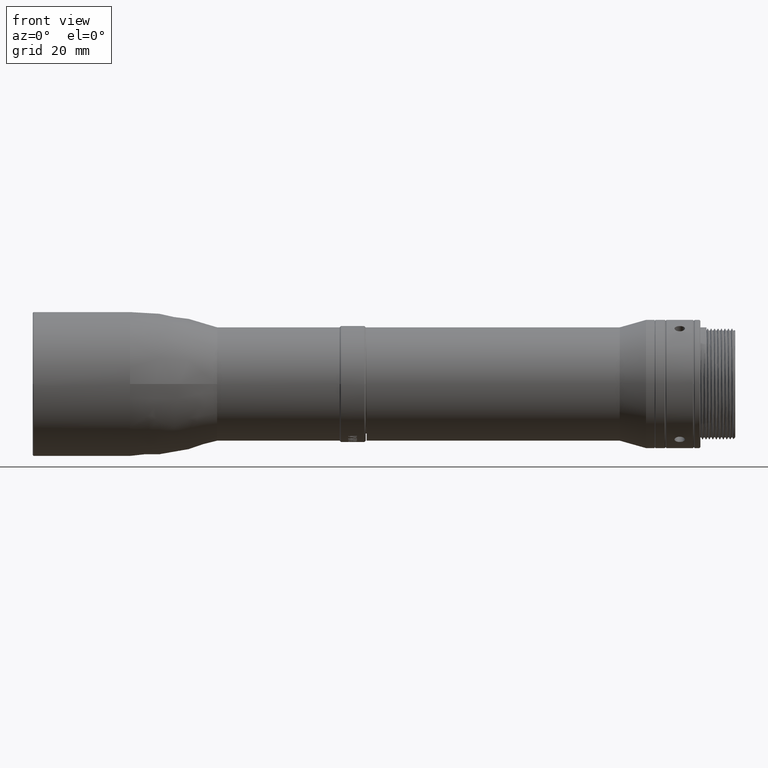
[diagram: clean part render]
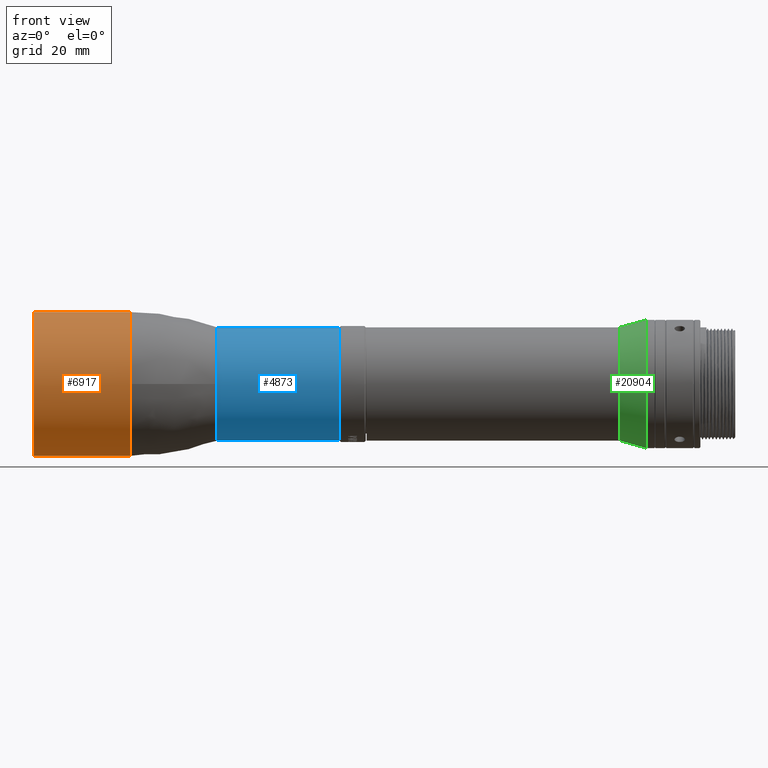
[diagram: same view with three faces highlighted in distinct colors, each labeled with its STEP entity id]
A machine part, front view with three faces highlighted in distinct colors.
Their STEP definitions:

[orange] entity #6917 — the highlighted face is a freeform B-spline surface patch.
#797 = VERTEX_POINT ( 'NONE', #2583 ) ;
#919 = CARTESIAN_POINT ( 'NONE',  ( -20.00000000000000000, -3.178822486404952411E-09, -16.50000000001667644 ) ) ;
#1673 = CARTESIAN_POINT ( 'NONE',  ( -42.11000000000000654, -16.49999999999999645, -5.019639770831055392E-09 ) ) ;
#2487 = CARTESIAN_POINT ( 'NONE',  ( -20.00000000000000000, -16.49999999974913223, -3.709077887212430661E-05 ) ) ;
#2583 = CARTESIAN_POINT ( 'NONE',  ( -42.10999999999999943, -6.486395782474088192E-09, 16.50000000000000000 ) ) ;
#2952 = CARTESIAN_POINT ( 'NONE',  ( -20.00000000000000000, -4.041334438045979436E-15, -16.50000000000000000 ) ) ;
#3078 = DIRECTION ( 'NONE',  ( -1.000000000000000000, -0.000000000000000000, -0.000000000000000000 ) ) ;
#3324 =( BOUNDED_CURVE ( )  B_SPLINE_CURVE ( 3, ( #16725, #16996, #20907, #18679 ),
 .UNSPECIFIED., .F., .T. ) 
 B_SPLINE_CURVE_WITH_KNOTS ( ( 4, 4 ),
 ( 0.000000000000000000, 1.000000000000000000 ),
 .UNSPECIFIED. ) 
 CURVE ( )  GEOMETRIC_REPRESENTATION_ITEM ( )  RATIONAL_B_SPLINE_CURVE ( ( 0.5000000001031833508, 0.4999996254826141739, 0.6666662921148863719, 1.000000000000000000 ) ) 
 REPRESENTATION_ITEM ( '' )  );
#3679 = CARTESIAN_POINT ( 'NONE',  ( -42.11000000000001364, -15.97227470411579198, 4.278162377373036840 ) ) ;
#4046 = CARTESIAN_POINT ( 'NONE',  ( -42.11000000000000654, -16.50000000015684876, 1.079922472092851748 ) ) ;
#4757 = CARTESIAN_POINT ( 'NONE',  ( -20.00000000000000355, -32.99999999323157596, 16.49999998646317323 ) ) ;
#4889 = CARTESIAN_POINT ( 'NONE',  ( -20.00000000000000355, -32.99999998646318033, -16.49999999999999289 ) ) ;
#5739 = CARTESIAN_POINT ( 'NONE',  ( -42.11000000000001364, -5.316558368529911149, 15.65728072383330449 ) ) ;
#6576 = FACE_OUTER_BOUND ( 'NONE', #22468, .T. ) ;
#6708 = ORIENTED_EDGE ( 'NONE', *, *, #23654, .T. ) ;
#6917 = ADVANCED_FACE ( 'NONE', ( #6576 ), #20268, .F. ) ;
#6991 = CARTESIAN_POINT ( 'NONE',  ( -31.05499999999999972, 0.000000000000000000, -16.50000000000000000 ) ) ;
#7107 = CARTESIAN_POINT ( 'NONE',  ( -20.00000000000000000, -6.768413141005929510E-09, 16.50000000000000000 ) ) ;
#7580 = CARTESIAN_POINT ( 'NONE',  ( -42.11000000000001364, -8.268986128094045540, 14.31922138121677257 ) ) ;
#7937 = CARTESIAN_POINT ( 'NONE',  ( -42.11000000000002075, -10.90364138816323170, 12.43088239141700235 ) ) ;
#8068 = CARTESIAN_POINT ( 'NONE',  ( -42.10999999999999943, -14.31922138580975279, 8.268986120140468188 ) ) ;
#9050 = CARTESIAN_POINT ( 'NONE',  ( -31.05499999999999972, -6.768413141005929510E-09, 16.50000000000000000 ) ) ;
#9057 = B_SPLINE_CURVE_WITH_KNOTS ( 'NONE', 3,
 ( #19685, #4046, #11860, #3679, #17986, #15908, #8068, #13952, #22026, #7937, #23863, #7580, #23601, #5739, #10032, #12117, #11614, #9777 ),
 .UNSPECIFIED., .F., .F.,
 ( 4, 2, 2, 2, 2, 2, 2, 2, 4 ),
 ( 0.000000000000000000, 0.1250000000000000555, 0.2500000000000001110, 0.3750000000000000555, 0.5000000000000000000, 0.6249999999999998890, 0.7499999999999998890, 0.8749999999999998890, 1.000000000000000000 ),
 .UNSPECIFIED. ) ;
#9777 = CARTESIAN_POINT ( 'NONE',  ( -42.10999999999999943, -6.486395782474088192E-09, 16.50000000000000000 ) ) ;
#10032 = CARTESIAN_POINT ( 'NONE',  ( -42.11000000000001364, -4.278162386244799720, 15.97227470173949371 ) ) ;
#10188 = ORIENTED_EDGE ( 'NONE', *, *, #12881, .T. ) ;
#10279 = VERTEX_POINT ( 'NONE', #25705 ) ;
#10752 = CARTESIAN_POINT ( 'NONE',  ( -42.10999999999999943, -6.768413141005929510E-09, 16.50000000000000000 ) ) ;
#11029 = CARTESIAN_POINT ( 'NONE',  ( -42.11000000000000654, -32.99999999323157596, 16.49999998646317323 ) ) ;
#11033 = ORIENTED_EDGE ( 'NONE', *, *, #16175, .F. ) ;
#11460 = VERTEX_POINT ( 'NONE', #20785 ) ;
#11614 = CARTESIAN_POINT ( 'NONE',  ( -42.11000000000000654, -1.079922481257737488, 16.49999999955700858 ) ) ;
#11700 = EDGE_CURVE ( 'NONE', #15762, #12187, #21936, .T. ) ;
#11860 = CARTESIAN_POINT ( 'NONE',  ( -42.11000000000000654, -16.39363955033910969, 2.159818243386351089 ) ) ;
#12117 = CARTESIAN_POINT ( 'NONE',  ( -42.10999999999999233, -2.159818252492157420, 16.39363954913944355 ) ) ;
#12141 = CARTESIAN_POINT ( 'NONE',  ( -42.10999999999999943, -7.758803709337645993E-10, -16.50000000000000000 ) ) ;
#12187 = VERTEX_POINT ( 'NONE', #1673 ) ;
#12274 = CARTESIAN_POINT ( 'NONE',  ( -42.10999999999999943, -10.99999999724308886, -16.49999999793099192 ) ) ;
#12642 = ORIENTED_EDGE ( 'NONE', *, *, #11700, .F. ) ;
#12881 = EDGE_CURVE ( 'NONE', #10279, #11460, #24459, .T. ) ;
#12969 = CARTESIAN_POINT ( 'NONE',  ( -42.11000000000000654, -32.99999998646318033, -16.49999999999999289 ) ) ;
#13249 = LINE ( 'NONE', #6991, #13390 ) ;
#13390 = VECTOR ( 'NONE', #18984, 1000.000000000000000 ) ;
#13731 = ORIENTED_EDGE ( 'NONE', *, *, #20353, .T. ) ;
#13952 = CARTESIAN_POINT ( 'NONE',  ( -42.11000000000000654, -13.11927582465873776, 10.06483156279487190 ) ) ;
#14768 = EDGE_CURVE ( 'NONE', #21166, #797, #15050, .T. ) ;
#14865 = CARTESIAN_POINT ( 'NONE',  ( -19.99999999999999645, -16.49997527281871967, -11.00001648439760160 ) ) ;
#15050 = LINE ( 'NONE', #9050, #17242 ) ;
#15337 = CARTESIAN_POINT ( 'NONE',  ( -20.00000000000000355, -5.866025812294397193E-09, 16.50000000000000000 ) ) ;
#15762 = VERTEX_POINT ( 'NONE', #23263 ) ;
#15908 = CARTESIAN_POINT ( 'NONE',  ( -42.10999999999999943, -14.83074384875681950, 7.311994901767167931 ) ) ;
#16175 = EDGE_CURVE ( 'NONE', #12187, #797, #9057, .T. ) ;
#16725 = CARTESIAN_POINT ( 'NONE',  ( -20.00000000000000000, -16.49999999974913223, -3.709077887212430661E-05 ) ) ;
#16752 = CARTESIAN_POINT ( 'NONE',  ( -42.10999999999999943, -4.041334438045979436E-15, -16.50000000000000000 ) ) ;
#16996 = CARTESIAN_POINT ( 'NONE',  ( -20.00000000000000000, -16.50002472719053515, 10.99998351105614525 ) ) ;
#17242 = VECTOR ( 'NONE', #3078, 1000.000000000000000 ) ;
#17986 = CARTESIAN_POINT ( 'NONE',  ( -42.11000000000000654, -15.65728072678636984, 5.316558359833104319 ) ) ;
#18500 = ORIENTED_EDGE ( 'NONE', *, *, #14768, .T. ) ;
#18679 = CARTESIAN_POINT ( 'NONE',  ( -20.00000000000000355, -5.866025812294397193E-09, 16.50000000000000000 ) ) ;
#18984 = DIRECTION ( 'NONE',  ( 1.000000000000000000, 0.000000000000000000, 0.000000000000000000 ) ) ;
#19685 = CARTESIAN_POINT ( 'NONE',  ( -42.11000000000000654, -16.49999999999999645, -5.019639770831055392E-09 ) ) ;
#20268 =( BOUNDED_SURFACE ( )  B_SPLINE_SURFACE ( 1, 3, ( 
 ( #10752, #11029, #12969, #16752 ),
 ( #7107, #4757, #4889, #2952 ) ),
 .UNSPECIFIED., .F., .F., .F. ) 
 B_SPLINE_SURFACE_WITH_KNOTS ( ( 2, 2 ),
 ( 4, 4 ),
 ( 0.000000000000000000, 1.000000000000000000 ),
 ( 0.000000000000000000, 1.000000000000000000 ),
 .UNSPECIFIED. ) 
 GEOMETRIC_REPRESENTATION_ITEM ( )  RATIONAL_B_SPLINE_SURFACE ( (
 ( 1.000000000000000000, 0.3333333334700690487, 0.3333333334700690487, 1.000000000000000000),
 ( 1.000000000000000000, 0.3333333334700690487, 0.3333333334700690487, 1.000000000000000000) ) ) 
 REPRESENTATION_ITEM ( '' )  SURFACE ( )  );
#20353 = EDGE_CURVE ( 'NONE', #11460, #21166, #3324, .T. ) ;
#20785 = CARTESIAN_POINT ( 'NONE',  ( -20.00000000000000000, -16.49999999974913223, -3.709077887212430661E-05 ) ) ;
#20907 = CARTESIAN_POINT ( 'NONE',  ( -20.00000000000000000, -8.250013913703176271, 16.49999999661578798 ) ) ;
#21166 = VERTEX_POINT ( 'NONE', #15337 ) ;
#21797 = CARTESIAN_POINT ( 'NONE',  ( -42.10999999999999943, -16.49999999661579508, -8.250000003489466494 ) ) ;
#21936 =( BOUNDED_CURVE ( )  B_SPLINE_CURVE ( 3, ( #12141, #12274, #21797, #22838 ),
 .UNSPECIFIED., .F., .T. ) 
 B_SPLINE_CURVE_WITH_KNOTS ( ( 4, 4 ),
 ( 0.000000000000000000, 1.000000000000000000 ),
 .UNSPECIFIED. ) 
 CURVE ( )  GEOMETRIC_REPRESENTATION_ITEM ( )  RATIONAL_B_SPLINE_CURVE ( ( 0.5000000001025517449, 0.5000000001680843242, 0.6666666668005670759, 1.000000000000000000 ) ) 
 REPRESENTATION_ITEM ( '' )  );
#22026 = CARTESIAN_POINT ( 'NONE',  ( -42.11000000000000654, -12.43088239747339685, 10.90364138125852733 ) ) ;
#22468 = EDGE_LOOP ( 'NONE', ( #12642, #6708, #10188, #13731, #18500, #11033 ) ) ;
#22838 = CARTESIAN_POINT ( 'NONE',  ( -42.11000000000000654, -16.49999999999999645, -5.019639770831055392E-09 ) ) ;
#23263 = CARTESIAN_POINT ( 'NONE',  ( -42.10999999999999943, -7.758803709337645993E-10, -16.50000000000000000 ) ) ;
#23601 = CARTESIAN_POINT ( 'NONE',  ( -42.11000000000001364, -7.311994910004875337, 14.83074384469538742 ) ) ;
#23654 = EDGE_CURVE ( 'NONE', #15762, #10279, #13249, .T. ) ;
#23863 = CARTESIAN_POINT ( 'NONE',  ( -42.11000000000001364, -10.06483157008194063, 13.11927581906826035 ) ) ;
#24459 =( BOUNDED_CURVE ( )  B_SPLINE_CURVE ( 3, ( #919, #24643, #14865, #2487 ),
 .UNSPECIFIED., .F., .T. ) 
 B_SPLINE_CURVE_WITH_KNOTS ( ( 4, 4 ),
 ( 0.000000000000000000, 1.000000000000000000 ),
 .UNSPECIFIED. ) 
 CURVE ( )  GEOMETRIC_REPRESENTATION_ITEM ( )  RATIONAL_B_SPLINE_CURVE ( ( 1.000000000000000000, 0.6666670413551827323, 0.5000003747229104789, 0.5000000001031833508 ) ) 
 REPRESENTATION_ITEM ( '' )  );
#24643 = CARTESIAN_POINT ( 'NONE',  ( -20.00000000000000000, -8.249986091388766596, -16.49999999999999645 ) ) ;
#25705 = CARTESIAN_POINT ( 'NONE',  ( -20.00000000000000000, -3.178822486404952411E-09, -16.50000000001667644 ) ) ;

[blue] entity #4873 — the highlighted face is a freeform B-spline surface patch.
#1083 = EDGE_LOOP ( 'NONE', ( #18682, #19393, #6749, #11283, #13313, #21117 ) ) ;
#1258 = CARTESIAN_POINT ( 'NONE',  ( 28.10000000000000142, -25.99999998933461143, -12.99999999999999467 ) ) ;
#1293 = CARTESIAN_POINT ( 'NONE',  ( 0.000000000000000000, -1.600683940460371374E-09, -13.00000000000821387 ) ) ;
#1513 = CARTESIAN_POINT ( 'NONE',  ( 28.10000000000000142, -25.99999999466730216, 12.99999998933462209 ) ) ;
#1681 = EDGE_CURVE ( 'NONE', #19537, #10910, #23566, .T. ) ;
#1926 = DIRECTION ( 'NONE',  ( -1.000000000000000000, -0.000000000000000000, -0.000000000000000000 ) ) ;
#2456 =( BOUNDED_CURVE ( )  B_SPLINE_CURVE ( 3, ( #24874, #7003, #14960, #17790 ),
 .UNSPECIFIED., .F., .T. ) 
 B_SPLINE_CURVE_WITH_KNOTS ( ( 4, 4 ),
 ( 0.000000000000000000, 1.000000000000000000 ),
 .UNSPECIFIED. ) 
 CURVE ( )  GEOMETRIC_REPRESENTATION_ITEM ( )  RATIONAL_B_SPLINE_CURVE ( ( 1.000000000000000000, 0.6666665732461959371, 0.4999999066137262860, 0.5000000001025910468 ) ) 
 REPRESENTATION_ITEM ( '' )  );
#2963 = CARTESIAN_POINT ( 'NONE',  ( 0.000000000000000000, -25.99999998933461143, -12.99999999999999467 ) ) ;
#2988 = CARTESIAN_POINT ( 'NONE',  ( 0.000000000000000000, -4.888298066081760467E-09, 13.00000000000000178 ) ) ;
#3387 = VERTEX_POINT ( 'NONE', #2988 ) ;
#3394 = CARTESIAN_POINT ( 'NONE',  ( 0.000000000000000000, -12.99999999918819782, -0.0001169025233984181662 ) ) ;
#3585 = CARTESIAN_POINT ( 'NONE',  ( 0.000000000000000000, -12.99999999918819782, -0.0001169025233984181662 ) ) ;
#3672 = CARTESIAN_POINT ( 'NONE',  ( 28.10000000000000853, -6.499997270117956916, 12.99999999733365286 ) ) ;
#4873 = ADVANCED_FACE ( 'NONE', ( #11422 ), #15110, .F. ) ;
#5203 = CARTESIAN_POINT ( 'NONE',  ( 0.000000000000000000, -7.602858146822400798, -12.99998290787283928 ) ) ;
#5614 = CARTESIAN_POINT ( 'NONE',  ( 28.09999742734215289, -12.99999745608207213, 2.698588196939306857E-06 ) ) ;
#6749 = ORIENTED_EDGE ( 'NONE', *, *, #12644, .T. ) ;
#7003 = CARTESIAN_POINT ( 'NONE',  ( 28.10000000000000497, -6.500002733882327632, -13.00000000000000000 ) ) ;
#7067 = CARTESIAN_POINT ( 'NONE',  ( 28.09999793287488146, -5.332689204748432654E-09, 13.00000064587497839 ) ) ;
#7083 = CARTESIAN_POINT ( 'NONE',  ( 14.05000000000000249, -5.332689141398610227E-09, 13.00000000000000178 ) ) ;
#7466 = LINE ( 'NONE', #7083, #14660 ) ;
#8315 = VECTOR ( 'NONE', #1926, 1000.000000000000000 ) ;
#8418 = EDGE_CURVE ( 'NONE', #3387, #11110, #7466, .T. ) ;
#8938 = CARTESIAN_POINT ( 'NONE',  ( 0.000000000000000000, -3.184081678362554275E-15, -13.00000000000000178 ) ) ;
#8954 = CARTESIAN_POINT ( 'NONE',  ( 0.000000000000000000, -12.99999999918819782, -0.0001169025233984181662 ) ) ;
#8982 = CARTESIAN_POINT ( 'NONE',  ( 28.09999793287488146, -5.332689204748432654E-09, 13.00000064587497839 ) ) ;
#9314 =( BOUNDED_CURVE ( )  B_SPLINE_CURVE ( 3, ( #3585, #17395, #25349, #18830 ),
 .UNSPECIFIED., .F., .T. ) 
 B_SPLINE_CURVE_WITH_KNOTS ( ( 4, 4 ),
 ( 0.000000000000000000, 1.000000000000000000 ),
 .UNSPECIFIED. ) 
 CURVE ( )  GEOMETRIC_REPRESENTATION_ITEM ( )  RATIONAL_B_SPLINE_CURVE ( ( 1.000000000000000000, 0.8047357345473520329, 0.8047357345473520329, 1.000000000000000000 ) ) 
 REPRESENTATION_ITEM ( '' )  );
#10910 = VERTEX_POINT ( 'NONE', #14454 ) ;
#11110 = VERTEX_POINT ( 'NONE', #8982 ) ;
#11283 = ORIENTED_EDGE ( 'NONE', *, *, #18084, .T. ) ;
#11422 = FACE_OUTER_BOUND ( 'NONE', #1083, .T. ) ;
#12638 = VERTEX_POINT ( 'NONE', #8954 ) ;
#12644 = EDGE_CURVE ( 'NONE', #19537, #24691, #2456, .T. ) ;
#13281 = CARTESIAN_POINT ( 'NONE',  ( 0.000000000000000000, -12.99993140970424399, -7.627591356716593829 ) ) ;
#13313 = ORIENTED_EDGE ( 'NONE', *, *, #8418, .F. ) ;
#14454 = CARTESIAN_POINT ( 'NONE',  ( 0.000000000000000000, -1.600683940460371374E-09, -13.00000000000821387 ) ) ;
#14660 = VECTOR ( 'NONE', #17381, 1000.000000000000000 ) ;
#14736 = EDGE_CURVE ( 'NONE', #12638, #3387, #9314, .T. ) ;
#14960 = CARTESIAN_POINT ( 'NONE',  ( 28.10000000000000497, -13.00000485964227082, -8.666663426608208098 ) ) ;
#15072 = CARTESIAN_POINT ( 'NONE',  ( 28.10000000000000497, -5.332689141398610227E-09, 13.00000000000000178 ) ) ;
#15110 =( BOUNDED_SURFACE ( )  B_SPLINE_SURFACE ( 1, 3, ( 
 ( #19112, #24722, #2963, #8938 ),
 ( #15072, #1513, #1258, #23024 ) ),
 .UNSPECIFIED., .F., .F., .F. ) 
 B_SPLINE_SURFACE_WITH_KNOTS ( ( 2, 2 ),
 ( 4, 4 ),
 ( 0.000000000000000000, 1.000000000000000000 ),
 ( 0.000000000000000000, 1.000000000000000000 ),
 .UNSPECIFIED. ) 
 GEOMETRIC_REPRESENTATION_ITEM ( )  RATIONAL_B_SPLINE_SURFACE ( (
 ( 1.000000000000000000, 0.3333333334700690487, 0.3333333334700690487, 1.000000000000000000),
 ( 1.000000000000000000, 0.3333333334700690487, 0.3333333334700690487, 1.000000000000000000) ) ) 
 REPRESENTATION_ITEM ( '' )  SURFACE ( )  );
#15486 = CARTESIAN_POINT ( 'NONE',  ( 0.000000000000000000, -2.922600000000000444E-05, -13.00000000000000178 ) ) ;
#16399 = CARTESIAN_POINT ( 'NONE',  ( 28.09999800750000531, -1.542069400390220433E-09, -12.99999606849999800 ) ) ;
#16459 =( BOUNDED_CURVE ( )  B_SPLINE_CURVE ( 3, ( #5614, #21520, #3672, #7067 ),
 .UNSPECIFIED., .F., .T. ) 
 B_SPLINE_CURVE_WITH_KNOTS ( ( 4, 4 ),
 ( 0.000000000000000000, 1.000000000000000000 ),
 .UNSPECIFIED. ) 
 CURVE ( )  GEOMETRIC_REPRESENTATION_ITEM ( )  RATIONAL_B_SPLINE_CURVE ( ( 0.5000000001025910468, 0.5000000935914035161, 0.6666667602238731671, 1.000000000000000000 ) ) 
 REPRESENTATION_ITEM ( '' )  );
#17381 = DIRECTION ( 'NONE',  ( 1.000000000000000000, 0.000000000000000000, 0.000000000000000000 ) ) ;
#17395 = CARTESIAN_POINT ( 'NONE',  ( 0.000000000000000000, -13.00006848000000304, 7.615161082999995834 ) ) ;
#17790 = CARTESIAN_POINT ( 'NONE',  ( 28.09999742734215289, -12.99999745608207213, 2.698588196939306857E-06 ) ) ;
#18084 = EDGE_CURVE ( 'NONE', #24691, #11110, #16459, .T. ) ;
#18129 = CARTESIAN_POINT ( 'NONE',  ( 28.09999742734215289, -12.99999745608207213, 2.698588196939306857E-06 ) ) ;
#18682 = ORIENTED_EDGE ( 'NONE', *, *, #25346, .F. ) ;
#18830 = CARTESIAN_POINT ( 'NONE',  ( 0.000000000000000000, -4.888298066081760467E-09, 13.00000000000000178 ) ) ;
#19018 = CARTESIAN_POINT ( 'NONE',  ( 0.000000000000000000, -9.746269891414467107E-06, -13.00000000003284661 ) ) ;
#19112 = CARTESIAN_POINT ( 'NONE',  ( 0.000000000000000000, -5.332689141398610227E-09, 13.00000000000000178 ) ) ;
#19393 = ORIENTED_EDGE ( 'NONE', *, *, #1681, .F. ) ;
#19537 = VERTEX_POINT ( 'NONE', #16399 ) ;
#20815 =( BOUNDED_CURVE ( )  B_SPLINE_CURVE ( 3, ( #1293, #19018, #21112, #15486, #5203, #13281, #3394 ),
 .UNSPECIFIED., .F., .T. ) 
 B_SPLINE_CURVE_WITH_KNOTS ( ( 4, 3, 4 ),
 ( 0.000000000000000000, 1.595563408782400789E-06, 1.000000000000000000 ),
 .UNSPECIFIED. ) 
 CURVE ( )  GEOMETRIC_REPRESENTATION_ITEM ( )  RATIONAL_B_SPLINE_CURVE ( ( 0.9999990565551241106, 0.9999993710362542476, 0.9999996855178795441, 1.000000000000000000, 0.8029024625696333795, 0.8003081622393953820, 0.9922170990092860077 ) ) 
 REPRESENTATION_ITEM ( '' )  );
#21112 = CARTESIAN_POINT ( 'NONE',  ( 0.000000000000000000, -1.948613571146921234E-05, -13.00000000002189715 ) ) ;
#21117 = ORIENTED_EDGE ( 'NONE', *, *, #14736, .F. ) ;
#21520 = CARTESIAN_POINT ( 'NONE',  ( 28.10000000000000497, -12.99999514035818393, 8.666669903168330080 ) ) ;
#23024 = CARTESIAN_POINT ( 'NONE',  ( 28.10000000000000497, -3.184081678362554275E-15, -13.00000000000000178 ) ) ;
#23566 = LINE ( 'NONE', #23692, #8315 ) ;
#23692 = CARTESIAN_POINT ( 'NONE',  ( 14.05000000000000249, -3.184081678362554275E-15, -13.00000000000000178 ) ) ;
#24691 = VERTEX_POINT ( 'NONE', #18129 ) ;
#24722 = CARTESIAN_POINT ( 'NONE',  ( 0.000000000000000000, -25.99999999466730216, 12.99999998933462209 ) ) ;
#24874 = CARTESIAN_POINT ( 'NONE',  ( 28.09999800750000531, -1.542069400390220433E-09, -12.99999606849999800 ) ) ;
#25346 = EDGE_CURVE ( 'NONE', #10910, #12638, #20815, .T. ) ;
#25349 = CARTESIAN_POINT ( 'NONE',  ( 0.000000000000000000, -7.615277987000007798, 13.00000000000000355 ) ) ;

[green] entity #20904 — the highlighted face is a freeform B-spline surface patch.
#536 = CARTESIAN_POINT ( 'NONE',  ( 98.39000000000001478, -29.39999998793991054, -14.69999999999999041 ) ) ;
#617 = CARTESIAN_POINT ( 'NONE',  ( 92.39000000000000057, -2.388061258771915706E-15, -13.00000000000000178 ) ) ;
#2763 = ORIENTED_EDGE ( 'NONE', *, *, #4576, .F. ) ;
#3383 = ORIENTED_EDGE ( 'NONE', *, *, #17503, .T. ) ;
#3753 = EDGE_CURVE ( 'NONE', #12225, #7866, #7049, .T. ) ;
#4257 = VECTOR ( 'NONE', #20872, 1000.000000000000114 ) ;
#4441 = CARTESIAN_POINT ( 'NONE',  ( 98.39000000000001478, -29.39999999396995278, 14.69999998793991836 ) ) ;
#4576 = EDGE_CURVE ( 'NONE', #4996, #7866, #16775, .T. ) ;
#4996 = VERTEX_POINT ( 'NONE', #23645 ) ;
#5945 = VECTOR ( 'NONE', #20083, 1000.000000000000114 ) ;
#6468 = CARTESIAN_POINT ( 'NONE',  ( 92.39000000000000057, -25.99999998933461143, -12.99999999999999467 ) ) ;
#7049 = LINE ( 'NONE', #12908, #4257 ) ;
#7866 = VERTEX_POINT ( 'NONE', #11564 ) ;
#8277 = CARTESIAN_POINT ( 'NONE',  ( 92.39000000000000057, -25.99999999466729506, 12.99999998933462031 ) ) ;
#8880 = CARTESIAN_POINT ( 'NONE',  ( 92.39000000000000057, -5.332689141398610227E-09, 13.00000000000000178 ) ) ;
#9704 = VERTEX_POINT ( 'NONE', #11848 ) ;
#10597 = ORIENTED_EDGE ( 'NONE', *, *, #23063, .T. ) ;
#10708 = CARTESIAN_POINT ( 'NONE',  ( 92.39000000000000057, -25.99999999466730216, 12.99999998933462209 ) ) ;
#11564 = CARTESIAN_POINT ( 'NONE',  ( 98.39000000000000057, 0.000000000000000000, -14.69999999999999929 ) ) ;
#11694 = CARTESIAN_POINT ( 'NONE',  ( 92.39000000000000057, -2.388061258771915706E-15, -13.00000000000000178 ) ) ;
#11848 = CARTESIAN_POINT ( 'NONE',  ( 92.38999999999997215, -5.332689141398607745E-09, 12.99999999999999467 ) ) ;
#12225 = VERTEX_POINT ( 'NONE', #11694 ) ;
#12908 = CARTESIAN_POINT ( 'NONE',  ( 95.39000000000000057, 0.000000000000000000, -13.84999999999999964 ) ) ;
#12966 =( BOUNDED_CURVE ( )  B_SPLINE_CURVE ( 3, ( #16115, #8277, #6468, #617 ),
 .UNSPECIFIED., .F., .T. ) 
 B_SPLINE_CURVE_WITH_KNOTS ( ( 4, 4 ),
 ( 0.000000000000000000, 1.000000000000000000 ),
 .UNSPECIFIED. ) 
 CURVE ( )  GEOMETRIC_REPRESENTATION_ITEM ( )  RATIONAL_B_SPLINE_CURVE ( ( 1.000000000000000000, 0.3333333334700690487, 0.3333333334700690487, 1.000000000000000000 ) ) 
 REPRESENTATION_ITEM ( '' )  );
#13190 = CARTESIAN_POINT ( 'NONE',  ( 92.39000000000000057, -25.99999998933461143, -12.99999999999999467 ) ) ;
#14753 = CARTESIAN_POINT ( 'NONE',  ( 98.39000000000002899, -29.39999999396995634, 14.69999998793991836 ) ) ;
#16115 = CARTESIAN_POINT ( 'NONE',  ( 92.38999999999997215, -5.332689141398607745E-09, 12.99999999999999467 ) ) ;
#16775 =( BOUNDED_CURVE ( )  B_SPLINE_CURVE ( 3, ( #19944, #4441, #536, #20214 ),
 .UNSPECIFIED., .F., .T. ) 
 B_SPLINE_CURVE_WITH_KNOTS ( ( 4, 4 ),
 ( 0.000000000000000000, 1.000000000000000000 ),
 .UNSPECIFIED. ) 
 CURVE ( )  GEOMETRIC_REPRESENTATION_ITEM ( )  RATIONAL_B_SPLINE_CURVE ( ( 1.000000000000000000, 0.3333333334700690487, 0.3333333334700690487, 1.000000000000000000 ) ) 
 REPRESENTATION_ITEM ( '' )  );
#16841 = CARTESIAN_POINT ( 'NONE',  ( 98.39000000000000057, -6.030040798350735696E-09, 14.69999999999999929 ) ) ;
#16972 = FACE_OUTER_BOUND ( 'NONE', #18518, .T. ) ;
#17098 = CARTESIAN_POINT ( 'NONE',  ( 98.39000000000000057, -3.600461589862592110E-15, -14.69999999999999929 ) ) ;
#17503 = EDGE_CURVE ( 'NONE', #9704, #12225, #12966, .T. ) ;
#18518 = EDGE_LOOP ( 'NONE', ( #19357, #2763, #10597, #3383 ) ) ;
#18660 = CARTESIAN_POINT ( 'NONE',  ( 98.39000000000002899, -29.39999998793990699, -14.69999999999999396 ) ) ;
#19057 = CARTESIAN_POINT ( 'NONE',  ( 92.39000000000000057, -3.184081678362554275E-15, -13.00000000000000178 ) ) ;
#19298 =( BOUNDED_SURFACE ( )  B_SPLINE_SURFACE ( 1, 3, ( 
 ( #8880, #10708, #13190, #19057 ),
 ( #16841, #14753, #18660, #17098 ) ),
 .UNSPECIFIED., .F., .F., .F. ) 
 B_SPLINE_SURFACE_WITH_KNOTS ( ( 2, 2 ),
 ( 4, 4 ),
 ( 0.000000000000000000, 1.000000000000000000 ),
 ( 0.000000000000000000, 1.000000000000000000 ),
 .UNSPECIFIED. ) 
 GEOMETRIC_REPRESENTATION_ITEM ( )  RATIONAL_B_SPLINE_SURFACE ( (
 ( 1.000000000000000000, 0.3333333334700690487, 0.3333333334700690487, 1.000000000000000000),
 ( 1.000000000000000000, 0.3333333334700690487, 0.3333333334700690487, 1.000000000000000000) ) ) 
 REPRESENTATION_ITEM ( '' )  SURFACE ( )  );
#19357 = ORIENTED_EDGE ( 'NONE', *, *, #3753, .T. ) ;
#19944 = CARTESIAN_POINT ( 'NONE',  ( 98.38999999999997215, -6.030040798350734042E-09, 14.69999999999999751 ) ) ;
#19947 = LINE ( 'NONE', #21533, #5945 ) ;
#20083 = DIRECTION ( 'NONE',  ( -0.9621267263153838734, 1.118234444656595090E-10, -0.2726025724560249275 ) ) ;
#20214 = CARTESIAN_POINT ( 'NONE',  ( 98.39000000000000057, 0.000000000000000000, -14.69999999999999929 ) ) ;
#20872 = DIRECTION ( 'NONE',  ( 0.9621267263153838734, 0.000000000000000000, -0.2726025724560249275 ) ) ;
#20904 = ADVANCED_FACE ( 'NONE', ( #16972 ), #19298, .F. ) ;
#21533 = CARTESIAN_POINT ( 'NONE',  ( 95.39000000000000057, -5.681364969874672962E-09, 13.84999999999999964 ) ) ;
#23063 = EDGE_CURVE ( 'NONE', #4996, #9704, #19947, .T. ) ;
#23645 = CARTESIAN_POINT ( 'NONE',  ( 98.38999999999997215, -6.030040798350734042E-09, 14.69999999999999751 ) ) ;